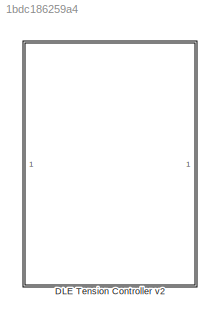
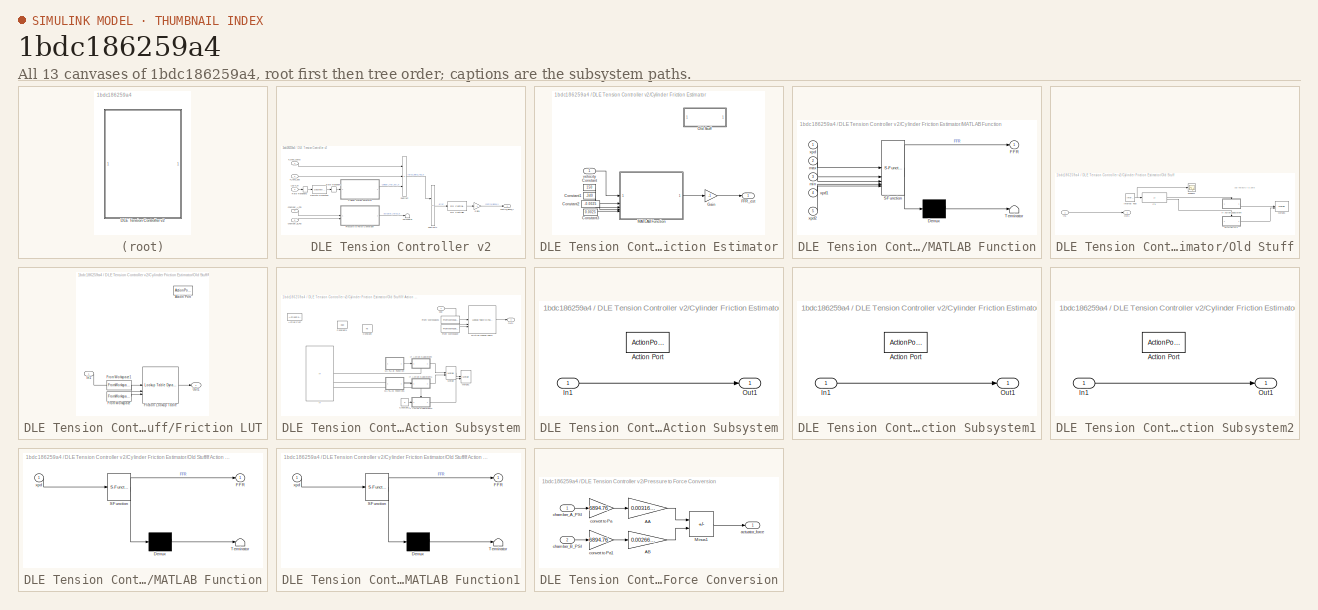
[diagram: thumbnail index - all 13 canvases of the model, root first then tree order]
MODEL slx_1bdc186259a4
KIND library
CONFIG AbsTol = auto
CONFIG EnableMultiTasking = off
CONFIG FixedStep = auto
CONFIG MaxStep = auto
CONFIG MinStep = auto
CONFIG RelTol = 1e-3
CONFIG SampleTimeConstraint = Unconstrained
CONFIG SolverName = VariableStepAuto
CONFIG StartTime = 0.0
CONFIG StopTime = 10.0
BLOCK [SubSystem] DLE Tension Controller v2
BLOCK [SubSystem] DLE Tension Controller v2/Cylinder Friction Estimator
BLOCK [Constant] DLE Tension Controller v2/Cylinder Friction Estimator/Constant
  Value = 150
BLOCK [Constant] DLE Tension Controller v2/Cylinder Friction Estimator/Constant1
  Value = -340
BLOCK [Constant] DLE Tension Controller v2/Cylinder Friction Estimator/Constant2
  Value = -0.0025
BLOCK [Constant] DLE Tension Controller v2/Cylinder Friction Estimator/Constant3
  Value = 0.0025
BLOCK [Outport] DLE Tension Controller v2/Cylinder Friction Estimator/FFR_est
  VectorParamsAs1DForOutWhenUnconnected = off
BLOCK [Gain] DLE Tension Controller v2/Cylinder Friction Estimator/Gain
  Gain = -1
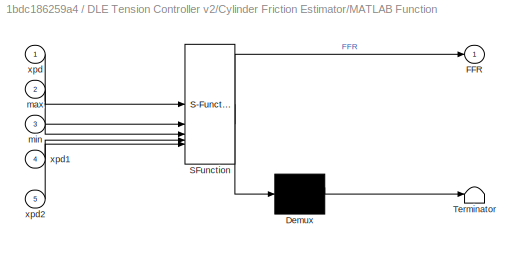
BLOCK [SubSystem] DLE Tension Controller v2/Cylinder Friction Estimator/MATLAB Function
  ErrorFcn = Stateflow.Translate.translate
  PermitHierarchicalResolution = ExplicitOnly
  SFBlockType = MATLAB Function
  TreatAsAtomicUnit = on
BLOCK [Demux] DLE Tension Controller v2/Cylinder Friction Estimator/MATLAB Function/ Demux 
  Outputs = 1
BLOCK [S-Function] DLE Tension Controller v2/Cylinder Friction Estimator/MATLAB Function/ SFunction 
  EnableBusSupport = off
  FunctionName = sf_sfun
  PortCounts = [5 2]
  SFcnIsStateOwnerBlock = off
  SFunctionDeploymentMode = off
  Tag = Stateflow S-Function 5
BLOCK [Terminator] DLE Tension Controller v2/Cylinder Friction Estimator/MATLAB Function/ Terminator 
BLOCK [Outport] DLE Tension Controller v2/Cylinder Friction Estimator/MATLAB Function/FFR
  VectorParamsAs1DForOutWhenUnconnected = off
BLOCK [Inport] DLE Tension Controller v2/Cylinder Friction Estimator/MATLAB Function/max
  Port = 2
BLOCK [Inport] DLE Tension Controller v2/Cylinder Friction Estimator/MATLAB Function/min
  Port = 3
BLOCK [Inport] DLE Tension Controller v2/Cylinder Friction Estimator/MATLAB Function/xpd
BLOCK [Inport] DLE Tension Controller v2/Cylinder Friction Estimator/MATLAB Function/xpd1
  Port = 4
BLOCK [Inport] DLE Tension Controller v2/Cylinder Friction Estimator/MATLAB Function/xpd2
  Port = 5
BLOCK [SubSystem] DLE Tension Controller v2/Cylinder Friction Estimator/Old Stuff
  Commented = on
BLOCK [SubSystem] DLE Tension Controller v2/Cylinder Friction Estimator/Old Stuff/Friction LUT
  TreatAsAtomicUnit = on
BLOCK [ActionPort] DLE Tension Controller v2/Cylinder Friction Estimator/Old Stuff/Friction LUT/Action Port
BLOCK [Reference] DLE Tension Controller v2/Cylinder Friction Estimator/Old Stuff/Friction LUT/Friction Lookup Table  REF=simulink/Lookup
Tables/Lookup
Table
Dynamic
  SourceBlock = simulink/Lookup\nTables/Lookup\nTable\nDynamic
  SourceType = Lookup Table Dynamic
BLOCK [FromWorkspace] DLE Tension Controller v2/Cylinder Friction Estimator/Old Stuff/Friction LUT/From Workspace
  VariableName = FFR
BLOCK [FromWorkspace] DLE Tension Controller v2/Cylinder Friction Estimator/Old Stuff/Friction LUT/From Workspace1
  VariableName = xpdot
BLOCK [Inport] DLE Tension Controller v2/Cylinder Friction Estimator/Old Stuff/Friction LUT/In1
BLOCK [Outport] DLE Tension Controller v2/Cylinder Friction Estimator/Old Stuff/Friction LUT/Out1
  VectorParamsAs1DForOutWhenUnconnected = off
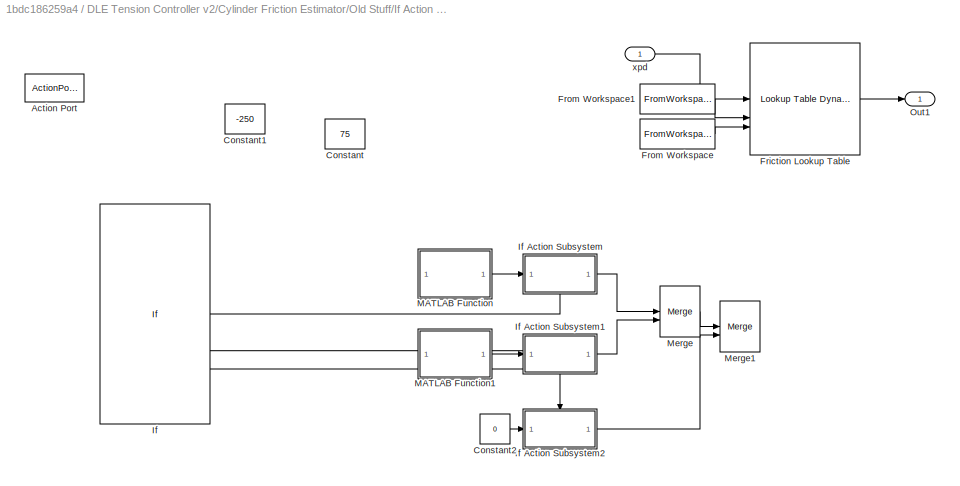
BLOCK [SubSystem] DLE Tension Controller v2/Cylinder Friction Estimator/Old Stuff/If Action Subsystem
  TreatAsAtomicUnit = on
BLOCK [ActionPort] DLE Tension Controller v2/Cylinder Friction Estimator/Old Stuff/If Action Subsystem/Action Port
BLOCK [Constant] DLE Tension Controller v2/Cylinder Friction Estimator/Old Stuff/If Action Subsystem/Constant
  Value = 75
BLOCK [Constant] DLE Tension Controller v2/Cylinder Friction Estimator/Old Stuff/If Action Subsystem/Constant1
  Value = -250
BLOCK [Constant] DLE Tension Controller v2/Cylinder Friction Estimator/Old Stuff/If Action Subsystem/Constant2
  Commented = on
  Value = 0
BLOCK [Reference] DLE Tension Controller v2/Cylinder Friction Estimator/Old Stuff/If Action Subsystem/Friction Lookup Table  REF=simulink/Lookup
Tables/Lookup
Table
Dynamic
  SourceBlock = simulink/Lookup\nTables/Lookup\nTable\nDynamic
  SourceType = Lookup Table Dynamic
BLOCK [FromWorkspace] DLE Tension Controller v2/Cylinder Friction Estimator/Old Stuff/If Action Subsystem/From Workspace
  VariableName = FFR
BLOCK [FromWorkspace] DLE Tension Controller v2/Cylinder Friction Estimator/Old Stuff/If Action Subsystem/From Workspace1
  VariableName = xpdot
BLOCK [If] DLE Tension Controller v2/Cylinder Friction Estimator/Old Stuff/If Action Subsystem/If
  Commented = on
  ElseIfExpressions = u1 < 0
BLOCK [SubSystem] DLE Tension Controller v2/Cylinder Friction Estimator/Old Stuff/If Action Subsystem/If Action Subsystem
  Commented = on
  TreatAsAtomicUnit = on
BLOCK [ActionPort] DLE Tension Controller v2/Cylinder Friction Estimator/Old Stuff/If Action Subsystem/If Action Subsystem/Action Port
BLOCK [Inport] DLE Tension Controller v2/Cylinder Friction Estimator/Old Stuff/If Action Subsystem/If Action Subsystem/In1
BLOCK [Outport] DLE Tension Controller v2/Cylinder Friction Estimator/Old Stuff/If Action Subsystem/If Action Subsystem/Out1
  VectorParamsAs1DForOutWhenUnconnected = off
BLOCK [SubSystem] DLE Tension Controller v2/Cylinder Friction Estimator/Old Stuff/If Action Subsystem/If Action Subsystem1
  Commented = on
  TreatAsAtomicUnit = on
BLOCK [ActionPort] DLE Tension Controller v2/Cylinder Friction Estimator/Old Stuff/If Action Subsystem/If Action Subsystem1/Action Port
BLOCK [Inport] DLE Tension Controller v2/Cylinder Friction Estimator/Old Stuff/If Action Subsystem/If Action Subsystem1/In1
BLOCK [Outport] DLE Tension Controller v2/Cylinder Friction Estimator/Old Stuff/If Action Subsystem/If Action Subsystem1/Out1
  VectorParamsAs1DForOutWhenUnconnected = off
BLOCK [SubSystem] DLE Tension Controller v2/Cylinder Friction Estimator/Old Stuff/If Action Subsystem/If Action Subsystem2
  Commented = on
  TreatAsAtomicUnit = on
BLOCK [ActionPort] DLE Tension Controller v2/Cylinder Friction Estimator/Old Stuff/If Action Subsystem/If Action Subsystem2/Action Port
BLOCK [Inport] DLE Tension Controller v2/Cylinder Friction Estimator/Old Stuff/If Action Subsystem/If Action Subsystem2/In1
BLOCK [Outport] DLE Tension Controller v2/Cylinder Friction Estimator/Old Stuff/If Action Subsystem/If Action Subsystem2/Out1
  VectorParamsAs1DForOutWhenUnconnected = off
BLOCK [SubSystem] DLE Tension Controller v2/Cylinder Friction Estimator/Old Stuff/If Action Subsystem/MATLAB Function
  Commented = on
  ErrorFcn = Stateflow.Translate.translate
  PermitHierarchicalResolution = ExplicitOnly
  SFBlockType = MATLAB Function
  TreatAsAtomicUnit = on
BLOCK [Demux] DLE Tension Controller v2/Cylinder Friction Estimator/Old Stuff/If Action Subsystem/MATLAB Function/ Demux 
  Outputs = 1
BLOCK [S-Function] DLE Tension Controller v2/Cylinder Friction Estimator/Old Stuff/If Action Subsystem/MATLAB Function/ SFunction 
  EnableBusSupport = off
  FunctionName = sf_sfun
  PortCounts = [1 2]
  SFcnIsStateOwnerBlock = off
  SFunctionDeploymentMode = off
  Tag = Stateflow S-Function 1
BLOCK [Terminator] DLE Tension Controller v2/Cylinder Friction Estimator/Old Stuff/If Action Subsystem/MATLAB Function/ Terminator 
BLOCK [Outport] DLE Tension Controller v2/Cylinder Friction Estimator/Old Stuff/If Action Subsystem/MATLAB Function/FFR
  VectorParamsAs1DForOutWhenUnconnected = off
BLOCK [Inport] DLE Tension Controller v2/Cylinder Friction Estimator/Old Stuff/If Action Subsystem/MATLAB Function/xpd
BLOCK [SubSystem] DLE Tension Controller v2/Cylinder Friction Estimator/Old Stuff/If Action Subsystem/MATLAB Function1
  Commented = on
  ErrorFcn = Stateflow.Translate.translate
  PermitHierarchicalResolution = ExplicitOnly
  SFBlockType = MATLAB Function
  TreatAsAtomicUnit = on
BLOCK [Demux] DLE Tension Controller v2/Cylinder Friction Estimator/Old Stuff/If Action Subsystem/MATLAB Function1/ Demux 
  Outputs = 1
BLOCK [S-Function] DLE Tension Controller v2/Cylinder Friction Estimator/Old Stuff/If Action Subsystem/MATLAB Function1/ SFunction 
  EnableBusSupport = off
  FunctionName = sf_sfun
  PortCounts = [1 2]
  SFcnIsStateOwnerBlock = off
  SFunctionDeploymentMode = off
  Tag = Stateflow S-Function 2
BLOCK [Terminator] DLE Tension Controller v2/Cylinder Friction Estimator/Old Stuff/If Action Subsystem/MATLAB Function1/ Terminator 
BLOCK [Outport] DLE Tension Controller v2/Cylinder Friction Estimator/Old Stuff/If Action Subsystem/MATLAB Function1/FFR
  VectorParamsAs1DForOutWhenUnconnected = off
BLOCK [Inport] DLE Tension Controller v2/Cylinder Friction Estimator/Old Stuff/If Action Subsystem/MATLAB Function1/xpd
BLOCK [Merge] DLE Tension Controller v2/Cylinder Friction Estimator/Old Stuff/If Action Subsystem/Merge
  Commented = on
BLOCK [Merge] DLE Tension Controller v2/Cylinder Friction Estimator/Old Stuff/If Action Subsystem/Merge1
  Commented = on
BLOCK [Outport] DLE Tension Controller v2/Cylinder Friction Estimator/Old Stuff/If Action Subsystem/Out1
  VectorParamsAs1DForOutWhenUnconnected = off
BLOCK [Inport] DLE Tension Controller v2/Cylinder Friction Estimator/Old Stuff/If Action Subsystem/xpd
BLOCK [If] DLE Tension Controller v2/Cylinder Friction Estimator/Old Stuff/If1
  IfExpression = u1 == 1
BLOCK [Inport] DLE Tension Controller v2/Cylinder Friction Estimator/Old Stuff/In1
BLOCK [Reference] DLE Tension Controller v2/Cylinder Friction Estimator/Old Stuff/Interval Test  REF=simulink/Logic and Bit
Operations/Interval Test
  SourceBlock = simulink/Logic and Bit\nOperations/Interval Test
  SourceType = Interval Test
BLOCK [Merge] DLE Tension Controller v2/Cylinder Friction Estimator/Old Stuff/Merge1
BLOCK [Outport] DLE Tension Controller v2/Cylinder Friction Estimator/Old Stuff/Out1
  VectorParamsAs1DForOutWhenUnconnected = off
BLOCK [Scope] DLE Tension Controller v2/Cylinder Friction Estimator/Old Stuff/Scope11
  ActiveDisplayYMaximum = 1.125
  ActiveDisplayYMinimum = -0.125
  DataLoggingVariableName = ScopeData1
  Floating = off
  GraphicalSettings = {"GraphicalSettings":{"LegacySettings":true,"Style":{"Style":{"AxesColor":"[0 0 0]","ChannelNames":[""],"ColorOrder":"[1 1 0.0666666666666667;0.0745098039215686 0.623529411764706 1;1 0.411764705882353 0.16078431372549;0.392156862745098 0.831372549019608 0.0745098039215686;0.717647058823529 0.274509803921569 1;0.0588235294117647 1 1;1 0.0745098039215686 0.650980392156863]","CurrentConfiguration":"e...<+368ch>
  MultipleDisplayCache = [{"MaxYLimMag":1.125,"MaxYLimReal":1.125,"MinYLimMag":0,"MinYLimReal":-0.125,"PlotAsMagnitudePhase":false,"ShowGrid":true,"ShowLegend":false,"Title":"%<SignalLabel>","YLabel":""}]
  NumInputPorts = 1
  WasSavedAsWebScope = on
  WindowPosition = [1 41 1920 963]
BLOCK [Inport] DLE Tension Controller v2/Cylinder Friction Estimator/velocity
BLOCK [Reference] DLE Tension Controller v2/Discrete Derivative  REF=simulink/Discrete/Discrete Derivative
  SourceBlock = simulink/Discrete/Discrete Derivative
  SourceType = Discrete Derivative
BLOCK [Inport] DLE Tension Controller v2/F_tens_comp
BLOCK [Inport] DLE Tension Controller v2/F_tens_des
  Port = 2
BLOCK [Gain] DLE Tension Controller v2/Gain1
  Gain = -1
BLOCK [Inport] DLE Tension Controller v2/LVDT_m
  Port = 3
BLOCK [Reference] DLE Tension Controller v2/PID Controller  REF=slpidlib/PID Controller
  LibrarySourceBlock = simulink/Continuous/PID Controller
  SourceBlock = slpidlib/PID Controller
  SourceType = PID 1dof
BLOCK [SubSystem] DLE Tension Controller v2/Pressure to Force Conversion
BLOCK [Gain] DLE Tension Controller v2/Pressure to Force Conversion/AA
  Gain = 0.00316692
BLOCK [Gain] DLE Tension Controller v2/Pressure to Force Conversion/AB
  Gain = 0.00266021
BLOCK [Sum] DLE Tension Controller v2/Pressure to Force Conversion/Minus1
  IconShape = rectangular
  Inputs = -+
BLOCK [Outport] DLE Tension Controller v2/Pressure to Force Conversion/actuator_force
  VectorParamsAs1DForOutWhenUnconnected = off
BLOCK [Inport] DLE Tension Controller v2/Pressure to Force Conversion/chamber_A_PSI
BLOCK [Inport] DLE Tension Controller v2/Pressure to Force Conversion/chamber_B_PSI
  Port = 2
BLOCK [Gain] DLE Tension Controller v2/Pressure to Force Conversion/convert to Pa
  Gain = 6894.76
BLOCK [Gain] DLE Tension Controller v2/Pressure to Force Conversion/convert to Pa1
  Gain = 6894.76
BLOCK [RateTransition] DLE Tension Controller v2/Rate Transition1
  OutPortSampleTime = 0.0001
BLOCK [RateTransition] DLE Tension Controller v2/Rate Transition2
  OutPortSampleTime = 0.001
BLOCK [Sum] DLE Tension Controller v2/Subtract
  IconShape = rectangular
  Inputs = -++
BLOCK [Sum] DLE Tension Controller v2/Subtract1
  IconShape = rectangular
  Inputs = +-
BLOCK [Terminator] DLE Tension Controller v2/Terminator
BLOCK [Inport] DLE Tension Controller v2/chamber_A_PSI
  Port = 4
BLOCK [Inport] DLE Tension Controller v2/chamber_B_PSI
  Port = 5
BLOCK [Outport] DLE Tension Controller v2/control_signal_V
ANNOTATION DLE Tension Controller v2/Cylinder Friction Estimator/Old Stuff: say velocity is zero
LINE DLE Tension Controller v2/Cylinder Friction Estimator/Constant1:1 -> DLE Tension Controller v2/Cylinder Friction Estimator/MATLAB Function:3
LINE DLE Tension Controller v2/Cylinder Friction Estimator/Constant2:1 -> DLE Tension Controller v2/Cylinder Friction Estimator/MATLAB Function:4
LINE DLE Tension Controller v2/Cylinder Friction Estimator/Constant3:1 -> DLE Tension Controller v2/Cylinder Friction Estimator/MATLAB Function:5
LINE DLE Tension Controller v2/Cylinder Friction Estimator/Constant:1 -> DLE Tension Controller v2/Cylinder Friction Estimator/MATLAB Function:2
LINE DLE Tension Controller v2/Cylinder Friction Estimator/Gain:1 -> DLE Tension Controller v2/Cylinder Friction Estimator/FFR_est:1
LINE DLE Tension Controller v2/Cylinder Friction Estimator/MATLAB Function:1 -> DLE Tension Controller v2/Cylinder Friction Estimator/Gain:1
LINE DLE Tension Controller v2/Cylinder Friction Estimator/Old Stuff/Friction LUT/Friction Lookup Table:1 -> DLE Tension Controller v2/Cylinder Friction Estimator/Old Stuff/Friction LUT/Out1:1
LINE DLE Tension Controller v2/Cylinder Friction Estimator/Old Stuff/Friction LUT/From Workspace1:1 -> DLE Tension Controller v2/Cylinder Friction Estimator/Old Stuff/Friction LUT/Friction Lookup Table:2
LINE DLE Tension Controller v2/Cylinder Friction Estimator/Old Stuff/Friction LUT/From Workspace:1 -> DLE Tension Controller v2/Cylinder Friction Estimator/Old Stuff/Friction LUT/Friction Lookup Table:3
LINE DLE Tension Controller v2/Cylinder Friction Estimator/Old Stuff/Friction LUT/In1:1 -> DLE Tension Controller v2/Cylinder Friction Estimator/Old Stuff/Friction LUT/Friction Lookup Table:1
LINE DLE Tension Controller v2/Cylinder Friction Estimator/Old Stuff/Friction LUT:1 -> DLE Tension Controller v2/Cylinder Friction Estimator/Old Stuff/Merge1:2
LINE DLE Tension Controller v2/Cylinder Friction Estimator/Old Stuff/If Action Subsystem/Constant2:1 -> DLE Tension Controller v2/Cylinder Friction Estimator/Old Stuff/If Action Subsystem/If Action Subsystem2:1
LINE DLE Tension Controller v2/Cylinder Friction Estimator/Old Stuff/If Action Subsystem/Friction Lookup Table:1 -> DLE Tension Controller v2/Cylinder Friction Estimator/Old Stuff/If Action Subsystem/Out1:1
LINE DLE Tension Controller v2/Cylinder Friction Estimator/Old Stuff/If Action Subsystem/From Workspace1:1 -> DLE Tension Controller v2/Cylinder Friction Estimator/Old Stuff/If Action Subsystem/Friction Lookup Table:2
LINE DLE Tension Controller v2/Cylinder Friction Estimator/Old Stuff/If Action Subsystem/From Workspace:1 -> DLE Tension Controller v2/Cylinder Friction Estimator/Old Stuff/If Action Subsystem/Friction Lookup Table:3
LINE DLE Tension Controller v2/Cylinder Friction Estimator/Old Stuff/If Action Subsystem/If Action Subsystem/In1:1 -> DLE Tension Controller v2/Cylinder Friction Estimator/Old Stuff/If Action Subsystem/If Action Subsystem/Out1:1
LINE DLE Tension Controller v2/Cylinder Friction Estimator/Old Stuff/If Action Subsystem/If Action Subsystem1/In1:1 -> DLE Tension Controller v2/Cylinder Friction Estimator/Old Stuff/If Action Subsystem/If Action Subsystem1/Out1:1
LINE DLE Tension Controller v2/Cylinder Friction Estimator/Old Stuff/If Action Subsystem/If Action Subsystem1:1 -> DLE Tension Controller v2/Cylinder Friction Estimator/Old Stuff/If Action Subsystem/Merge:2
LINE DLE Tension Controller v2/Cylinder Friction Estimator/Old Stuff/If Action Subsystem/If Action Subsystem2/In1:1 -> DLE Tension Controller v2/Cylinder Friction Estimator/Old Stuff/If Action Subsystem/If Action Subsystem2/Out1:1
LINE DLE Tension Controller v2/Cylinder Friction Estimator/Old Stuff/If Action Subsystem/If Action Subsystem2:1 -> DLE Tension Controller v2/Cylinder Friction Estimator/Old Stuff/If Action Subsystem/Merge1:2
LINE DLE Tension Controller v2/Cylinder Friction Estimator/Old Stuff/If Action Subsystem/If Action Subsystem:1 -> DLE Tension Controller v2/Cylinder Friction Estimator/Old Stuff/If Action Subsystem/Merge:1
LINE DLE Tension Controller v2/Cylinder Friction Estimator/Old Stuff/If Action Subsystem/If:1 -> DLE Tension Controller v2/Cylinder Friction Estimator/Old Stuff/If Action Subsystem/If Action Subsystem:ifaction
LINE DLE Tension Controller v2/Cylinder Friction Estimator/Old Stuff/If Action Subsystem/If:2 -> DLE Tension Controller v2/Cylinder Friction Estimator/Old Stuff/If Action Subsystem/If Action Subsystem1:ifaction
LINE DLE Tension Controller v2/Cylinder Friction Estimator/Old Stuff/If Action Subsystem/If:3 -> DLE Tension Controller v2/Cylinder Friction Estimator/Old Stuff/If Action Subsystem/If Action Subsystem2:ifaction
LINE DLE Tension Controller v2/Cylinder Friction Estimator/Old Stuff/If Action Subsystem/MATLAB Function1:1 -> DLE Tension Controller v2/Cylinder Friction Estimator/Old Stuff/If Action Subsystem/If Action Subsystem1:1
LINE DLE Tension Controller v2/Cylinder Friction Estimator/Old Stuff/If Action Subsystem/MATLAB Function:1 -> DLE Tension Controller v2/Cylinder Friction Estimator/Old Stuff/If Action Subsystem/If Action Subsystem:1
LINE DLE Tension Controller v2/Cylinder Friction Estimator/Old Stuff/If Action Subsystem/Merge:1 -> DLE Tension Controller v2/Cylinder Friction Estimator/Old Stuff/If Action Subsystem/Merge1:1
LINE DLE Tension Controller v2/Cylinder Friction Estimator/Old Stuff/If Action Subsystem/xpd:1 -> DLE Tension Controller v2/Cylinder Friction Estimator/Old Stuff/If Action Subsystem/Friction Lookup Table:1
LINE DLE Tension Controller v2/Cylinder Friction Estimator/Old Stuff/If Action Subsystem:1 -> DLE Tension Controller v2/Cylinder Friction Estimator/Old Stuff/Merge1:1
LINE DLE Tension Controller v2/Cylinder Friction Estimator/Old Stuff/If1:1 -> DLE Tension Controller v2/Cylinder Friction Estimator/Old Stuff/If Action Subsystem:ifaction
LINE DLE Tension Controller v2/Cylinder Friction Estimator/Old Stuff/If1:2 -> DLE Tension Controller v2/Cylinder Friction Estimator/Old Stuff/Friction LUT:ifaction
LINE DLE Tension Controller v2/Cylinder Friction Estimator/Old Stuff/In1:1 -> DLE Tension Controller v2/Cylinder Friction Estimator/Old Stuff/Out1:1
NET DLE Tension Controller v2/Cylinder Friction Estimator/Old Stuff/Interval Test:1 -> DLE Tension Controller v2/Cylinder Friction Estimator/Old Stuff/If1:1, DLE Tension Controller v2/Cylinder Friction Estimator/Old Stuff/Scope11:1
LINE DLE Tension Controller v2/Cylinder Friction Estimator/velocity:1 -> DLE Tension Controller v2/Cylinder Friction Estimator/MATLAB Function:1
LINE DLE Tension Controller v2/Cylinder Friction Estimator:1 -> DLE Tension Controller v2/Subtract:3
LINE DLE Tension Controller v2/Discrete Derivative:1 -> DLE Tension Controller v2/Rate Transition1:1
LINE DLE Tension Controller v2/F_tens_comp:1 -> DLE Tension Controller v2/Subtract:1
LINE DLE Tension Controller v2/F_tens_des:1 -> DLE Tension Controller v2/Subtract:2
LINE DLE Tension Controller v2/Gain1:1 -> DLE Tension Controller v2/control_signal_V:1
LINE DLE Tension Controller v2/LVDT_m:1 -> DLE Tension Controller v2/Rate Transition2:1
LINE DLE Tension Controller v2/PID Controller:1 -> DLE Tension Controller v2/Gain1:1
LINE DLE Tension Controller v2/Pressure to Force Conversion/AA:1 -> DLE Tension Controller v2/Pressure to Force Conversion/Minus1:1
LINE DLE Tension Controller v2/Pressure to Force Conversion/AB:1 -> DLE Tension Controller v2/Pressure to Force Conversion/Minus1:2
LINE DLE Tension Controller v2/Pressure to Force Conversion/Minus1:1 -> DLE Tension Controller v2/Pressure to Force Conversion/actuator_force:1
LINE DLE Tension Controller v2/Pressure to Force Conversion/chamber_A_PSI:1 -> DLE Tension Controller v2/Pressure to Force Conversion/convert to Pa:1
LINE DLE Tension Controller v2/Pressure to Force Conversion/chamber_B_PSI:1 -> DLE Tension Controller v2/Pressure to Force Conversion/convert to Pa1:1
LINE DLE Tension Controller v2/Pressure to Force Conversion/convert to Pa1:1 -> DLE Tension Controller v2/Pressure to Force Conversion/AB:1
LINE DLE Tension Controller v2/Pressure to Force Conversion/convert to Pa:1 -> DLE Tension Controller v2/Pressure to Force Conversion/AA:1
LINE DLE Tension Controller v2/Pressure to Force Conversion:1 -> DLE Tension Controller v2/Terminator:1
LINE DLE Tension Controller v2/Rate Transition1:1 -> DLE Tension Controller v2/Cylinder Friction Estimator:1
LINE DLE Tension Controller v2/Rate Transition2:1 -> DLE Tension Controller v2/Discrete Derivative:1
LINE DLE Tension Controller v2/Subtract1:1 -> DLE Tension Controller v2/PID Controller:1
LINE DLE Tension Controller v2/Subtract:1 -> DLE Tension Controller v2/Subtract1:1
LINE DLE Tension Controller v2/chamber_A_PSI:1 -> DLE Tension Controller v2/Pressure to Force Conversion:1
LINE DLE Tension Controller v2/chamber_B_PSI:1 -> DLE Tension Controller v2/Pressure to Force Conversion:2
note: NET lines group one-source signal fan-out (src -> all destinations, sorted); 1:1 wires keep LINE
CHART DLE Tension Controller v2/Cylinder Friction Estimator/Old Stuff/If Action
Subsystem/MATLAB Function states=1 transitions=1
  STATE_LABEL 'eML_blk_kernel()'
  STATE_LABEL 'SCRIPT:\nfunction FFR = fcn(xpd)\n\nFFR = 250/0.006*xpd; %linear fit for static friction force\nend'
CHART DLE Tension Controller v2/Cylinder Friction Estimator/Old Stuff/If Action
Subsystem/MATLAB Function1 states=1 transitions=1
  STATE_LABEL 'eML_blk_kernel()'
  STATE_LABEL 'SCRIPT:\nfunction FFR = fcn(xpd)\n\nFFR = 450/0.004*xpd; %linear fit for static friction force\nend'
CHART DLE Tension Controller v2/Cylinder Friction Estimator/MATLAB Function states=1 transitions=1
  STATE_LABEL 'eML_blk_kernel()'
  STATE_LABEL 'SCRIPT:\nfunction FFR = FrictionPoly(xpd, max, min,xpd1, xpd2)\n\np_pos = [286259495.429843,-173193752.694681,41175113.3821288,-4870042.97579715,308159.025845462,-8434.36139981410,146.161974739502];\np_neg = [-162371605.890866,-93401901.1521574,-21487354.7937511,-2556477.89021572,-183283.452954630,-6357.37685861595,-310.459473151221];\n\n\nif xpd > xpd2\n        \n        if xpd <= 0.179334\n            FFR...<+876ch>'
CHART  states=0 transitions=0
CHART  states=0 transitions=0
CHART  states=0 transitions=0
